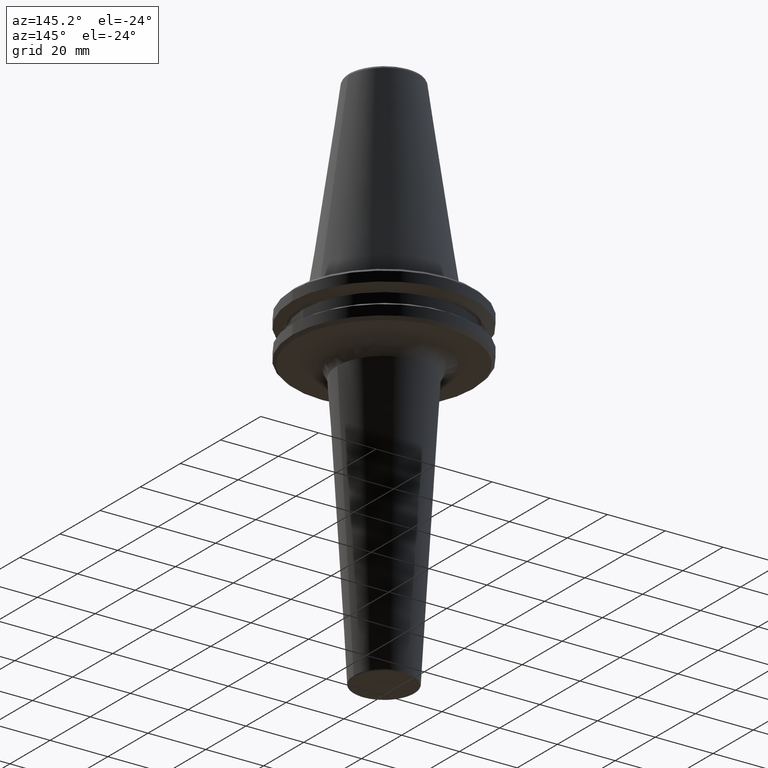
[diagram: clean part render]
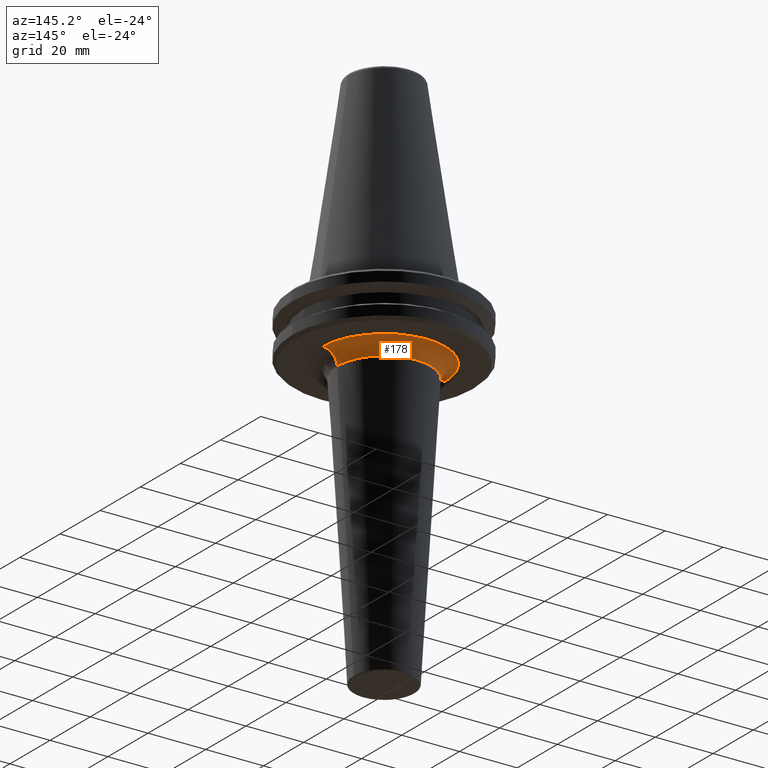
[diagram: same view with one face highlighted and labeled with its STEP entity id]
A machine part, auxiliary view. The second image highlights one B-rep face of the part: STEP entity #178.
In plain terms, the highlighted face is a freeform B-spline surface patch.
Its self-contained STEP definition (entity closure, byte-faithful):
#6 = CARTESIAN_POINT ( 'NONE',  ( -5.536028421710796900, 20.49408997576355400, -19.10000000000000500 ) ) ;
#14 = CARTESIAN_POINT ( 'NONE',  ( 20.90493810727572900, 3.580033281388277800, -19.10000000000000100 ) ) ;
#21 = CARTESIAN_POINT ( 'NONE',  ( 19.45613358552905200, 8.473156190068118900, -19.10000000000000100 ) ) ;
#42 = AXIS2_PLACEMENT_3D ( 'NONE', #406, #777, #1219 ) ;
#71 = CARTESIAN_POINT ( 'NONE',  ( 16.95084618482284400, 12.83099665843176900, -19.10000000000000100 ) ) ;
#86 = CARTESIAN_POINT ( 'NONE',  ( -16.38516356507829700, 2.006603811347897100E-015, -21.01394058202841100 ) ) ;
#104 = CIRCLE ( 'NONE', #42, 16.21796768721838700 ) ;
#107 = CARTESIAN_POINT ( 'NONE',  ( -11.30445203757469300, 17.94545799786546100, -19.10000000000000100 ) ) ;
#109 = CARTESIAN_POINT ( 'NONE',  ( -18.68403516072655200, 10.08137943591962600, -19.10000000000000900 ) ) ;
#111 = CARTESIAN_POINT ( 'NONE',  ( 16.03207156306585900, 13.96191988741585600, -19.10000000000000900 ) ) ;
#113 = CARTESIAN_POINT ( 'NONE',  ( -20.83910835702227600, 3.943772271568402000, -19.10000000000000100 ) ) ;
#114 = FACE_OUTER_BOUND ( 'NONE', #1087, .T. ) ;
#115 = CARTESIAN_POINT ( 'NONE',  ( 7.973229162724424100, 19.65327147605940200, -19.10000000000000500 ) ) ;
#124 = CARTESIAN_POINT ( 'NONE',  ( 1.296893099168436900, 21.20895948544582100, -19.10000000000000900 ) ) ;
#130 = CARTESIAN_POINT ( 'NONE',  ( -7.245179490132585400, 19.93444734563756200, -19.10000000000000500 ) ) ;
#135 = CARTESIAN_POINT ( 'NONE',  ( 20.86952471368809000, 3.779504474401150100, -19.10000000000000100 ) ) ;
#141 = CARTESIAN_POINT ( 'NONE',  ( 18.41019482400805200, 10.54120912129616300, -19.10000000000000500 ) ) ;
#178 = ADVANCED_FACE ( 'NONE', ( #114 ), #1261, .F. ) ;
#190 = EDGE_CURVE ( 'NONE', #1411, #1371, #104, .T. ) ;
#202 = CARTESIAN_POINT ( 'NONE',  ( 18.41738258006083800, 36.83476516012167000, -19.10000000000000900 ) ) ;
#217 = CARTESIAN_POINT ( 'NONE',  ( -11.52919039614956800, 17.80189258276863700, -19.10000000000000900 ) ) ;
#220 = CARTESIAN_POINT ( 'NONE',  ( -19.48194823981362900, 8.386495554251142800, -19.10000000000000500 ) ) ;
#224 = CARTESIAN_POINT ( 'NONE',  ( 13.66744679529304900, 16.24708748584204800, -19.10000000000000100 ) ) ;
#226 = CARTESIAN_POINT ( 'NONE',  ( -20.85122731342108800, 3.879181209930616900, -19.10000000000000500 ) ) ;
#228 = CARTESIAN_POINT ( 'NONE',  ( 7.846878380902786900, 19.70405137245902000, -19.10000000000000500 ) ) ;
#231 = CARTESIAN_POINT ( 'NONE',  ( -1.617188075191835500, 21.16476075172740300, -19.10000000000000100 ) ) ;
#236 = CARTESIAN_POINT ( 'NONE',  ( -7.646812897878333200, 19.78255597905034000, -19.10000000000000500 ) ) ;
#245 = CARTESIAN_POINT ( 'NONE',  ( 20.85882534491067400, 3.838122239266855900, -19.10000000000000500 ) ) ;
#248 = CARTESIAN_POINT ( 'NONE',  ( 17.94545799785909400, 11.30445203758533500, -19.10000000000000500 ) ) ;
#304 = CARTESIAN_POINT ( 'NONE',  ( -18.41738258006083800, 2.255478862534372600E-015, -19.10000000000000500 ) ) ;
#320 = CARTESIAN_POINT ( 'NONE',  ( -13.96191988742645900, 16.03207156305525400, -19.10000000000000900 ) ) ;
#321 = CARTESIAN_POINT ( 'NONE',  ( 16.21796768721838700, 32.43593537443676000, -23.80053854636027200 ) ) ;
#324 = CARTESIAN_POINT ( 'NONE',  ( -19.65327147606070200, 7.973229162723104200, -19.10000000000000500 ) ) ;
#325 = CARTESIAN_POINT ( 'NONE',  ( 12.13683355224145400, 17.39481296651600300, -19.10000000000000900 ) ) ;
#326 = CARTESIAN_POINT ( 'NONE',  ( -21.20899191454728700, 1.297423906764570100, -19.10000000000000500 ) ) ;
#330 = CARTESIAN_POINT ( 'NONE',  ( 6.194561080957043100, 20.30474617698654100, -19.10000000000000500 ) ) ;
#337 = CARTESIAN_POINT ( 'NONE',  ( -3.300455330025917600, 20.95174576253895200, -19.10000000000000900 ) ) ;
#348 = CARTESIAN_POINT ( 'NONE',  ( 20.49408997575112000, 5.536028421761927600, -19.10000000000001200 ) ) ;
#349 = EDGE_CURVE ( 'NONE', #1371, #354, #1437, .T. ) ;
#353 = CARTESIAN_POINT ( 'NONE',  ( 17.80189258276911700, 11.52919039614909600, -19.10000000000000900 ) ) ;
#354 = VERTEX_POINT ( 'NONE', #901 ) ;
#406 = CARTESIAN_POINT ( 'NONE',  ( 0.0000000000000000000, 0.0000000000000000000, -23.80053854636027200 ) ) ;
#409 = CARTESIAN_POINT ( 'NONE',  ( -21.20899191454728300, 2.597352406129242000E-015, -19.10000000000000500 ) ) ;
#413 = CARTESIAN_POINT ( 'NONE',  ( 21.20899191454728000, 42.41798382909456000, -19.10000000000000900 ) ) ;
#420 = EDGE_CURVE ( 'NONE', #1411, #1456, #973, .T. ) ;
#422 = DIRECTION ( 'NONE',  ( 0.0000000000000000000, 1.000000000000000000, 0.0000000000000000000 ) ) ;
#432 = CARTESIAN_POINT ( 'NONE',  ( -16.24708748583277500, 13.66744679530232500, -19.10000000000000500 ) ) ;
#434 = CARTESIAN_POINT ( 'NONE',  ( -19.70405137245877500, 7.846878380903893600, -19.10000000000000500 ) ) ;
#437 = CARTESIAN_POINT ( 'NONE',  ( 11.75861807050877400, 17.65119499915323300, -19.10000000000000100 ) ) ;
#439 = DIRECTION ( 'NONE',  ( -1.224646799147353200E-016, -1.000000000000000000, 0.0000000000000000000 ) ) ;
#446 = CARTESIAN_POINT ( 'NONE',  ( 4.449174394545107900, 20.73836181555099500, -19.10000000000000900 ) ) ;
#450 = CARTESIAN_POINT ( 'NONE',  ( -3.719660927442576700, 20.88033370111820400, -19.10000000000000500 ) ) ;
#454 = CARTESIAN_POINT ( 'NONE',  ( 21.20899191454728300, 0.0000000000000000000, -19.10000000000000500 ) ) ;
#459 = CARTESIAN_POINT ( 'NONE',  ( 16.21796768721838700, 0.0000000000000000000, -23.80053854636027200 ) ) ;
#463 = CARTESIAN_POINT ( 'NONE',  ( 19.93444734563211500, 7.245179490154955100, -19.10000000000000500 ) ) ;
#531 = CARTESIAN_POINT ( 'NONE',  ( -21.20899191454728300, 2.597352406129242000E-015, -19.10000000000000500 ) ) ;
#534 = CARTESIAN_POINT ( 'NONE',  ( -7.765277814437910200, 19.73635624534442100, -19.10000000000000500 ) ) ;
#544 = CARTESIAN_POINT ( 'NONE',  ( -17.39481296651193900, 12.13683355224550200, -19.10000000000000900 ) ) ;
#550 = CARTESIAN_POINT ( 'NONE',  ( -20.30474617699338700, 6.194561080926109600, -19.10000000000000100 ) ) ;
#552 = CARTESIAN_POINT ( 'NONE',  ( 11.00603488673551000, 18.14394470970745500, -19.10000000000001200 ) ) ;
#558 = CARTESIAN_POINT ( 'NONE',  ( 4.007114181889742000, 20.82708894541477900, -19.10000000000000100 ) ) ;
#564 = CARTESIAN_POINT ( 'NONE',  ( -3.819377156981782900, 20.86226438868059000, -19.10000000000000900 ) ) ;
#572 = CARTESIAN_POINT ( 'NONE',  ( 21.16473237626362900, 1.617341434004071900, -19.10000000000000900 ) ) ;
#577 = CARTESIAN_POINT ( 'NONE',  ( 19.78255597904863400, 7.646812897885352500, -19.10000000000000500 ) ) ;
#649 = CARTESIAN_POINT ( 'NONE',  ( -9.447691232942448300, 19.01232416390404000, -19.10000000000000500 ) ) ;
#664 = CARTESIAN_POINT ( 'NONE',  ( -17.65119499915194700, 11.75861807051005500, -19.10000000000000100 ) ) ;
#665 = CARTESIAN_POINT ( 'NONE',  ( -16.21796768721838700, 1.986128221682719700E-015, -23.80053854636027200 ) ) ;
#667 = CARTESIAN_POINT ( 'NONE',  ( -20.73836181555398600, 4.449174394531572000, -19.10000000000000500 ) ) ;
#669 = CARTESIAN_POINT ( 'NONE',  ( 8.958765118885995800, 19.23000056679532900, -19.10000000000000100 ) ) ;
#673 = EDGE_CURVE ( 'NONE', #354, #1456, #975, .T. ) ;
#677 = CARTESIAN_POINT ( 'NONE',  ( 3.901526193132214300, 20.84705883212559400, -19.10000000000000100 ) ) ;
#684 = CARTESIAN_POINT ( 'NONE',  ( -4.535434286163543000, 20.72980403604150400, -19.10000000000001200 ) ) ;
#690 = CARTESIAN_POINT ( 'NONE',  ( 20.95173334827354600, 3.300522424506270500, -19.10000000000000500 ) ) ;
#697 = CARTESIAN_POINT ( 'NONE',  ( 19.73635624534528100, 7.765277814436469600, -19.10000000000000500 ) ) ;
#763 = CARTESIAN_POINT ( 'NONE',  ( -16.38516356507829400, 32.77032713015658800, -21.01394058202841100 ) ) ;
#777 = DIRECTION ( 'NONE',  ( -0.0000000000000000000, -0.0000000000000000000, -1.000000000000000000 ) ) ;
#786 = CARTESIAN_POINT ( 'NONE',  ( -11.07710814999668300, 18.08804223376239100, -19.10000000000000500 ) ) ;
#788 = CARTESIAN_POINT ( 'NONE',  ( -18.14394470971284100, 11.00603488672999200, -19.10000000000000900 ) ) ;
#789 = CARTESIAN_POINT ( 'NONE',  ( 16.38516356507829700, 32.77032713015658800, -21.01394058202841100 ) ) ;
#794 = CARTESIAN_POINT ( 'NONE',  ( -20.82708894541561100, 4.007114181886004500, -19.10000000000000500 ) ) ;
#796 = CARTESIAN_POINT ( 'NONE',  ( 8.097620170412792400, 19.60266331881037500, -19.10000000000000500 ) ) ;
#801 = CARTESIAN_POINT ( 'NONE',  ( 2.584016856309621100, 21.09093403236601500, -19.10000000000000500 ) ) ;
#805 = CARTESIAN_POINT ( 'NONE',  ( -6.679451864352549800, 20.13500851040712900, -19.10000000000000500 ) ) ;
#812 = CARTESIAN_POINT ( 'NONE',  ( 20.88033026502687400, 3.719679498236245300, -19.10000000000000500 ) ) ;
#817 = CARTESIAN_POINT ( 'NONE',  ( 19.01232416387990300, 9.447691232982848000, -19.10000000000000500 ) ) ;
#830 = ORIENTED_EDGE ( 'NONE', *, *, #420, .T. ) ;
#885 = CARTESIAN_POINT ( 'NONE',  ( 18.41738258006083800, 0.0000000000000000000, -19.10000000000000500 ) ) ;
#901 = CARTESIAN_POINT ( 'NONE',  ( 21.20899191454728300, 0.0000000000000000000, -19.10000000000000500 ) ) ;
#910 = CARTESIAN_POINT ( 'NONE',  ( -11.45549749046332800, 17.84939765391870400, -19.10000000000000900 ) ) ;
#916 = CARTESIAN_POINT ( 'NONE',  ( -19.23000056680240300, 8.958765118878764300, -19.10000000000000500 ) ) ;
#918 = CARTESIAN_POINT ( 'NONE',  ( 14.47949722582763800, 15.51457306365263600, -19.10000000000000900 ) ) ;
#919 = CARTESIAN_POINT ( 'NONE',  ( -20.84705883212582800, 3.901526193131123100, -19.10000000000000500 ) ) ;
#920 = CARTESIAN_POINT ( 'NONE',  ( 7.890171319430882200, 19.68675983053464100, -19.10000000000000500 ) ) ;
#925 = CARTESIAN_POINT ( 'NONE',  ( -0.6484465495842256500, 21.20900812909801700, -19.10000000000000900 ) ) ;
#928 = ORIENTED_EDGE ( 'NONE', *, *, #673, .F. ) ;
#934 = CARTESIAN_POINT ( 'NONE',  ( -7.526547279137391300, 19.82891165522993000, -19.10000000000000500 ) ) ;
#940 = CARTESIAN_POINT ( 'NONE',  ( 20.86226338318843100, 3.819382591292373300, -19.10000000000000500 ) ) ;
#943 = CARTESIAN_POINT ( 'NONE',  ( 18.08804223375183500, 11.07710815001435400, -19.10000000000000100 ) ) ;
#947 = ORIENTED_EDGE ( 'NONE', *, *, #349, .F. ) ;
#956 = DIRECTION ( 'NONE',  ( 1.000000000000000000, 0.0000000000000000000, 0.0000000000000000000 ) ) ;
#973 = CIRCLE ( 'NONE', #1203, 5.000000000000004400 ) ;
#975 = B_SPLINE_CURVE_WITH_KNOTS ( 'NONE', 3,
 ( #454, #1293, #572, #1414, #690, #14, #812, #135, #940, #245, #1064, #348, #1172, #463, #1297, #577, #1423, #697, #21, #817, #141, #943, #248, #1071, #353, #71, #111, #918, #224, #1036, #325, #1153, #437, #1275, #552, #1396, #669, #1503, #796, #115, #920, #228, #1044, #330, #1158, #446, #1281, #558, #1402, #677, #1507, #801, #124, #925, #231, #1050, #337, #1161, #450, #1288, #564, #1409, #684, #6, #805, #130, #934, #236, #1250, #534, #1377, #649, #1495, #786, #107, #910, #217, #1030, #320, #1146, #432, #1268, #544, #1389, #664, #1498, #788, #109, #916, #220, #1034, #324, #1151, #434, #1273, #550, #1393, #667, #1501, #794, #113, #919, #226, #1038, #326, #1155 ),
 .UNSPECIFIED., .F., .F.,
 ( 4, 1, 1, 1, 1, 1, 2, 2, 1, 1, 1, 1, 2, 2, 1, 1, 1, 2, 2, 2, 1, 1, 1, 2, 2, 1, 1, 1, 1, 2, 2, 1, 1, 1, 1, 1, 2, 2, 2, 1, 1, 1, 1, 1, 2, 2, 1, 1, 1, 1, 2, 2, 1, 1, 1, 2, 2, 2, 1, 1, 1, 2, 2, 1, 1, 1, 1, 2, 2, 1, 1, 1, 1, 1, 2, 2, 4 ),
 ( 0.0000000000000000000, 0.03125000000000074900, 0.04687500000000112400, 0.05468750000000131800, 0.05859375000000142200, 0.06054687500000146400, 0.06152343750000147800, 0.06250000000000148500, 0.09375000000000104100, 0.1093750000000008200, 0.1171875000000006900, 0.1210937500000006400, 0.1230468750000006200, 0.1250000000000005800, 0.1562500000000005000, 0.1718750000000004200, 0.1796875000000003100, 0.1835937500000001900, 0.1875000000000000600, 0.2499999999999991400, 0.2812499999999986100, 0.2968749999999983900, 0.3046874999999983300, 0.3085937499999981700, 0.3124999999999980600, 0.3437499999999974500, 0.3593749999999972200, 0.3671874999999971100, 0.3710937499999970000, 0.3730468749999970000, 0.3749999999999970000, 0.4062499999999972200, 0.4218749999999973900, 0.4296874999999975000, 0.4335937499999975000, 0.4355468749999975000, 0.4365234374999975600, 0.4374999999999975600, 0.4999999999999983900, 0.5312499999999988900, 0.5468749999999991100, 0.5546874999999992200, 0.5585937499999993300, 0.5605468749999993300, 0.5615234374999993300, 0.5624999999999993300, 0.5937499999999986700, 0.6093749999999984500, 0.6171874999999982200, 0.6210937499999982200, 0.6230468749999982200, 0.6249999999999981100, 0.6562499999999974500, 0.6718749999999970000, 0.6796874999999968900, 0.6835937499999967800, 0.6874999999999965600, 0.7499999999999958900, 0.7812499999999955600, 0.7968749999999953400, 0.8046874999999953400, 0.8085937499999953400, 0.8124999999999952300, 0.8437499999999958900, 0.8593749999999963400, 0.8671874999999964500, 0.8710937499999965600, 0.8730468749999966700, 0.8749999999999966700, 0.9062499999999978900, 0.9218749999999984500, 0.9296874999999987800, 0.9335937499999988900, 0.9355468749999988900, 0.9365234374999988900, 0.9374999999999988900, 1.000000000000000000 ),
 .UNSPECIFIED. ) ;
#1009 = CARTESIAN_POINT ( 'NONE',  ( -18.41738258006083500, 36.83476516012167000, -19.10000000000000900 ) ) ;
#1030 = CARTESIAN_POINT ( 'NONE',  ( -12.83099665842412500, 16.95084618483048200, -19.10000000000000500 ) ) ;
#1034 = CARTESIAN_POINT ( 'NONE',  ( -19.60266331881258800, 8.097620170410532800, -19.10000000000000500 ) ) ;
#1036 = CARTESIAN_POINT ( 'NONE',  ( 12.65746891798399600, 17.02501635468730300, -19.10000000000000500 ) ) ;
#1038 = CARTESIAN_POINT ( 'NONE',  ( -21.09096647912421200, 2.583841542549781600, -19.10000000000000900 ) ) ;
#1044 = CARTESIAN_POINT ( 'NONE',  ( 7.167547126607042100, 19.97301155170931600, -19.10000000000000900 ) ) ;
#1050 = CARTESIAN_POINT ( 'NONE',  ( -2.740511998888765200, 21.03566333786748300, -19.10000000000000500 ) ) ;
#1064 = CARTESIAN_POINT ( 'NONE',  ( 20.72980403603440500, 4.535434286192761500, -19.10000000000000900 ) ) ;
#1071 = CARTESIAN_POINT ( 'NONE',  ( 17.84939765391536100, 11.45549749046892000, -19.10000000000000900 ) ) ;
#1076 = CARTESIAN_POINT ( 'NONE',  ( -16.21796768721838700, 1.986128221682719300E-015, -23.80053854636027200 ) ) ;
#1087 = EDGE_LOOP ( 'NONE', ( #1394, #830, #928, #947 ) ) ;
#1132 = CARTESIAN_POINT ( 'NONE',  ( 21.20899191454728300, 0.0000000000000000000, -19.10000000000000500 ) ) ;
#1139 = CARTESIAN_POINT ( 'NONE',  ( 21.20899191454728300, 0.0000000000000000000, -24.10000000000000900 ) ) ;
#1146 = CARTESIAN_POINT ( 'NONE',  ( -15.51457306364734000, 14.47949722583293100, -19.10000000000000900 ) ) ;
#1151 = CARTESIAN_POINT ( 'NONE',  ( -19.68675983053531600, 7.890171319430204600, -19.10000000000000500 ) ) ;
#1153 = CARTESIAN_POINT ( 'NONE',  ( 11.91035130397578900, 17.54918983817245600, -19.10000000000000500 ) ) ;
#1154 = CARTESIAN_POINT ( 'NONE',  ( -21.20899191454728300, 2.597352406129242000E-015, -24.10000000000000900 ) ) ;
#1155 = CARTESIAN_POINT ( 'NONE',  ( -21.20899191454728300, 2.597352406129242000E-015, -19.10000000000000500 ) ) ;
#1158 = CARTESIAN_POINT ( 'NONE',  ( 5.035032919208552100, 20.60781564609337500, -19.10000000000000100 ) ) ;
#1161 = CARTESIAN_POINT ( 'NONE',  ( -3.579997337916659200, 20.90494475777504500, -19.10000000000000100 ) ) ;
#1172 = CARTESIAN_POINT ( 'NONE',  ( 20.13500851039781400, 6.679451864390897800, -19.10000000000000500 ) ) ;
#1173 = CARTESIAN_POINT ( 'NONE',  ( 16.21796768721838700, 0.0000000000000000000, -23.80053854636027200 ) ) ;
#1203 = AXIS2_PLACEMENT_3D ( 'NONE', #1154, #439, #1276 ) ;
#1219 = DIRECTION ( 'NONE',  ( 1.000000000000000000, 0.0000000000000000000, 8.557044924162563600E-016 ) ) ;
#1247 = CARTESIAN_POINT ( 'NONE',  ( -21.20899191454728000, 42.41798382909456000, -19.10000000000000900 ) ) ;
#1250 = CARTESIAN_POINT ( 'NONE',  ( -7.726918737806333800, 19.75140195169142700, -19.10000000000000900 ) ) ;
#1261 =( BOUNDED_SURFACE ( )  B_SPLINE_SURFACE ( 3, 3, ( 
 ( #459, #321, #1390, #665 ),
 ( #1499, #789, #763, #86 ),
 ( #885, #202, #1009, #304 ),
 ( #1132, #413, #1247, #531 ) ),
 .UNSPECIFIED., .F., .F., .F. ) 
 B_SPLINE_SURFACE_WITH_KNOTS ( ( 4, 4 ),
 ( 4, 4 ),
 ( 0.0000000000000000000, 1.000000000000000000 ),
 ( 0.0000000000000000000, 1.000000000000000000 ),
 .UNSPECIFIED. ) 
 GEOMETRIC_REPRESENTATION_ITEM ( )  RATIONAL_B_SPLINE_SURFACE ( (
 ( 1.000000000000000000, 0.3333333333333334300, 0.3333333333333334300, 1.000000000000000000),
 ( 0.8186493336483506900, 0.2728831112161169700, 0.2728831112161169700, 0.8186493336483506900),
 ( 0.8186493336483506900, 0.2728831112161169700, 0.2728831112161169700, 0.8186493336483506900),
 ( 1.000000000000000000, 0.3333333333333334300, 0.3333333333333334300, 1.000000000000000000) ) ) 
 REPRESENTATION_ITEM ( '' )  SURFACE ( )  );
#1268 = CARTESIAN_POINT ( 'NONE',  ( -17.02501635468034600, 12.65746891799094300, -19.10000000000000500 ) ) ;
#1273 = CARTESIAN_POINT ( 'NONE',  ( -19.97301155171323500, 7.167547126589372700, -19.10000000000000500 ) ) ;
#1275 = CARTESIAN_POINT ( 'NONE',  ( 11.68073377865332300, 17.70281681997890600, -19.10000000000000100 ) ) ;
#1276 = DIRECTION ( 'NONE',  ( -1.000000000000000000, 1.224646799147352500E-016, 0.0000000000000000000 ) ) ;
#1278 = AXIS2_PLACEMENT_3D ( 'NONE', #1139, #422, #956 ) ;
#1281 = CARTESIAN_POINT ( 'NONE',  ( 4.154721521266082200, 20.79838775900584800, -19.10000000000000500 ) ) ;
#1288 = CARTESIAN_POINT ( 'NONE',  ( -3.779493734149511800, 20.86952670092063000, -19.10000000000000100 ) ) ;
#1293 = CARTESIAN_POINT ( 'NONE',  ( 21.20899191454728300, 0.6485341831912178100, -19.10000000000000100 ) ) ;
#1297 = CARTESIAN_POINT ( 'NONE',  ( 19.82891165522702800, 7.526547279149371900, -19.10000000000000500 ) ) ;
#1371 = VERTEX_POINT ( 'NONE', #1173 ) ;
#1377 = CARTESIAN_POINT ( 'NONE',  ( -8.473156190045028100, 19.45613358554284400, -19.10000000000000900 ) ) ;
#1389 = CARTESIAN_POINT ( 'NONE',  ( -17.54918983817001900, 11.91035130397823100, -19.10000000000000900 ) ) ;
#1390 = CARTESIAN_POINT ( 'NONE',  ( -16.21796768721838000, 32.43593537443676000, -23.80053854636027200 ) ) ;
#1393 = CARTESIAN_POINT ( 'NONE',  ( -20.60781564609852300, 5.035032919185360000, -19.10000000000000900 ) ) ;
#1394 = ORIENTED_EDGE ( 'NONE', *, *, #190, .F. ) ;
#1396 = CARTESIAN_POINT ( 'NONE',  ( 10.08137943592926300, 18.68403516071710200, -19.10000000000000500 ) ) ;
#1402 = CARTESIAN_POINT ( 'NONE',  ( 3.943772271570564800, 20.83910835702180000, -19.10000000000001200 ) ) ;
#1409 = CARTESIAN_POINT ( 'NONE',  ( -3.838122239267768500, 20.85882534491045300, -19.10000000000000500 ) ) ;
#1411 = VERTEX_POINT ( 'NONE', #1076 ) ;
#1414 = CARTESIAN_POINT ( 'NONE',  ( 21.03564205626964800, 2.740627017997947900, -19.10000000000000900 ) ) ;
#1423 = CARTESIAN_POINT ( 'NONE',  ( 19.75140195169055300, 7.726918737809927300, -19.10000000000000900 ) ) ;
#1437 = CIRCLE ( 'NONE', #1278, 5.000000000000004400 ) ;
#1456 = VERTEX_POINT ( 'NONE', #409 ) ;
#1495 = CARTESIAN_POINT ( 'NONE',  ( -10.54120912126586700, 18.41019482402615300, -19.10000000000000500 ) ) ;
#1498 = CARTESIAN_POINT ( 'NONE',  ( -17.70281681997823100, 11.68073377865400700, -19.10000000000000500 ) ) ;
#1499 = CARTESIAN_POINT ( 'NONE',  ( 16.38516356507829700, 0.0000000000000000000, -21.01394058202841100 ) ) ;
#1501 = CARTESIAN_POINT ( 'NONE',  ( -20.79838775900744400, 4.154721521258836400, -19.10000000000000500 ) ) ;
#1503 = CARTESIAN_POINT ( 'NONE',  ( 8.386495554255358100, 19.48194823980950500, -19.10000000000000100 ) ) ;
#1507 = CARTESIAN_POINT ( 'NONE',  ( 3.879178470653113400, 20.85122782040168200, -19.10000000000000500 ) ) ;